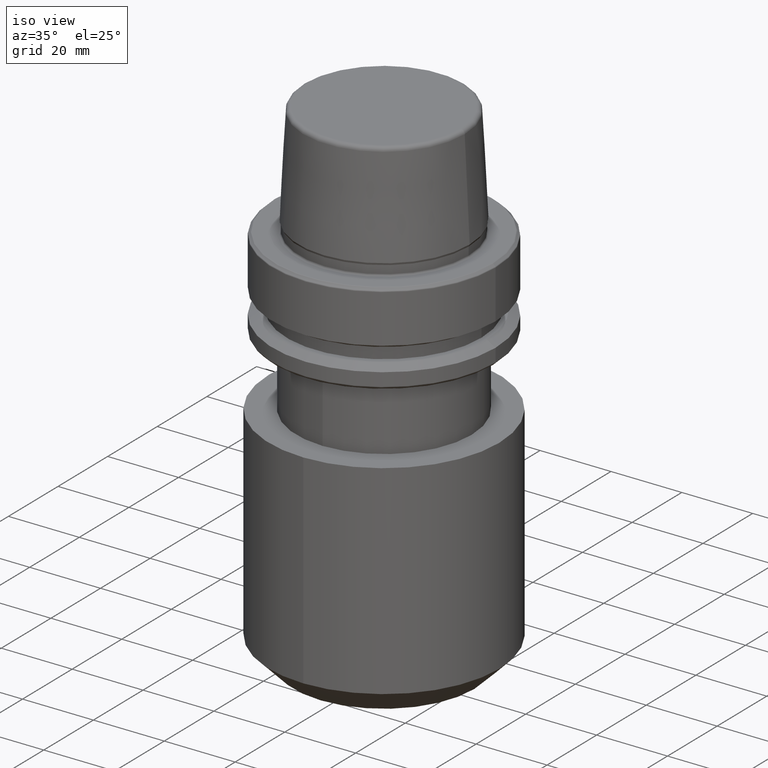
[diagram: clean part render]
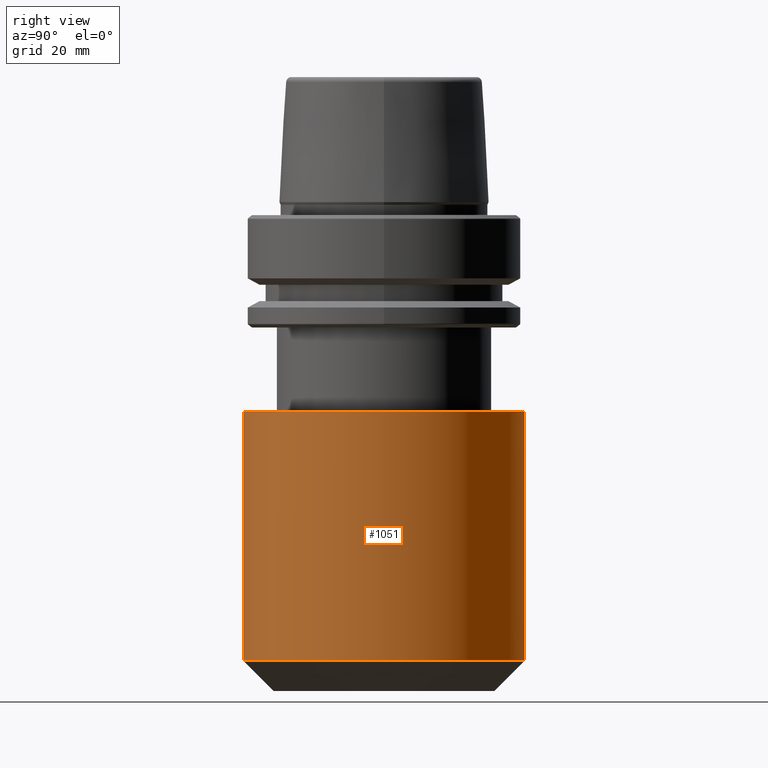
[diagram: tour spotlight — one face highlighted and labeled with its STEP entity id]
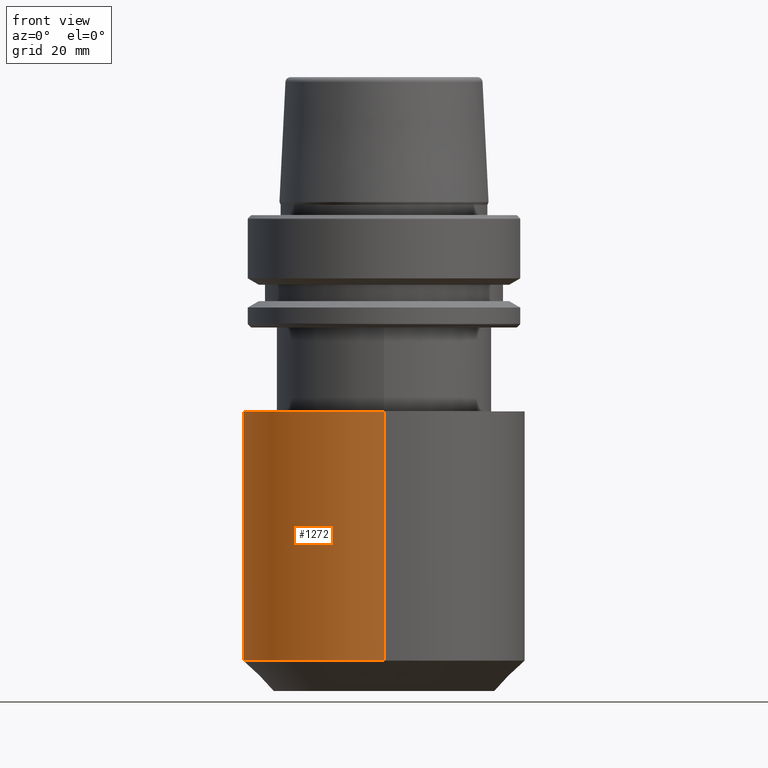
[diagram: tour spotlight — one face highlighted and labeled with its STEP entity id]
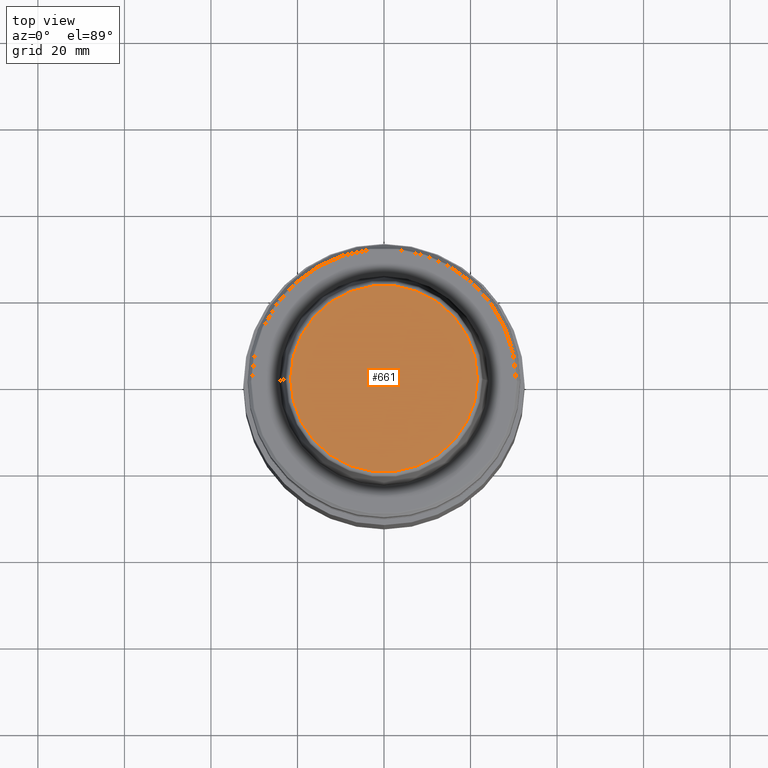
[diagram: tour spotlight — one face highlighted and labeled with its STEP entity id]
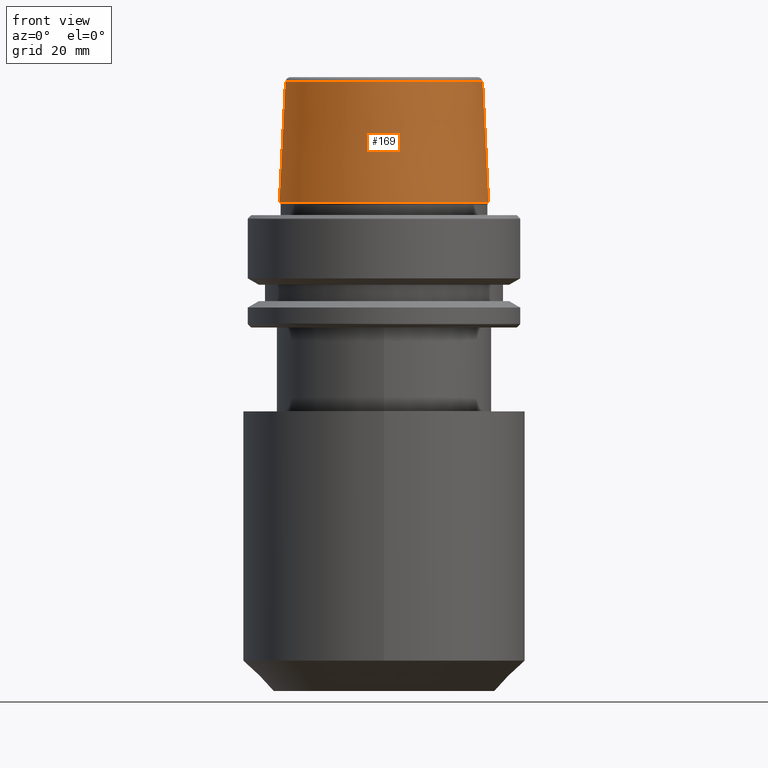
[diagram: tour spotlight — one face highlighted and labeled with its STEP entity id]
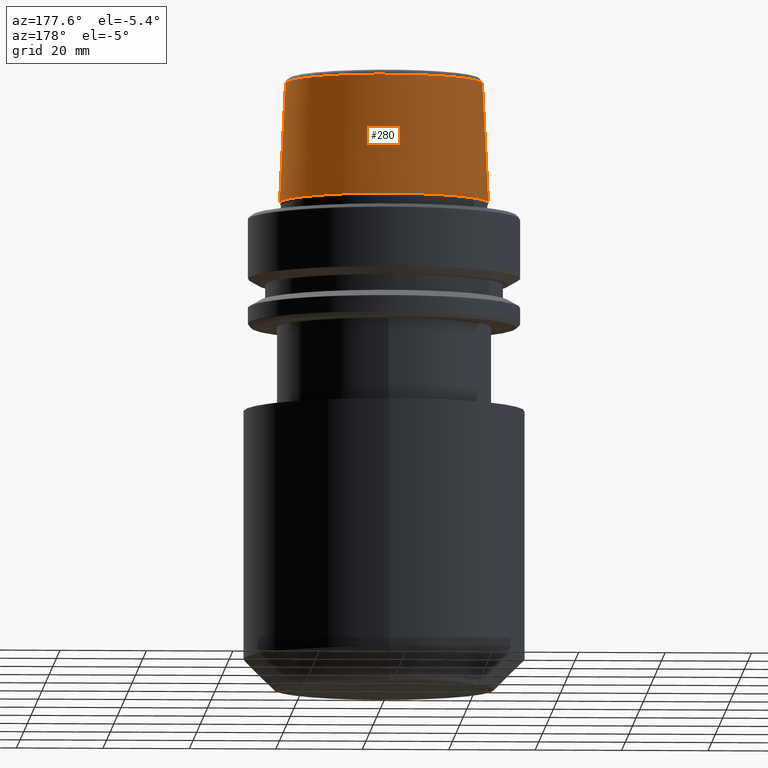
[diagram: tour spotlight — one face highlighted and labeled with its STEP entity id]
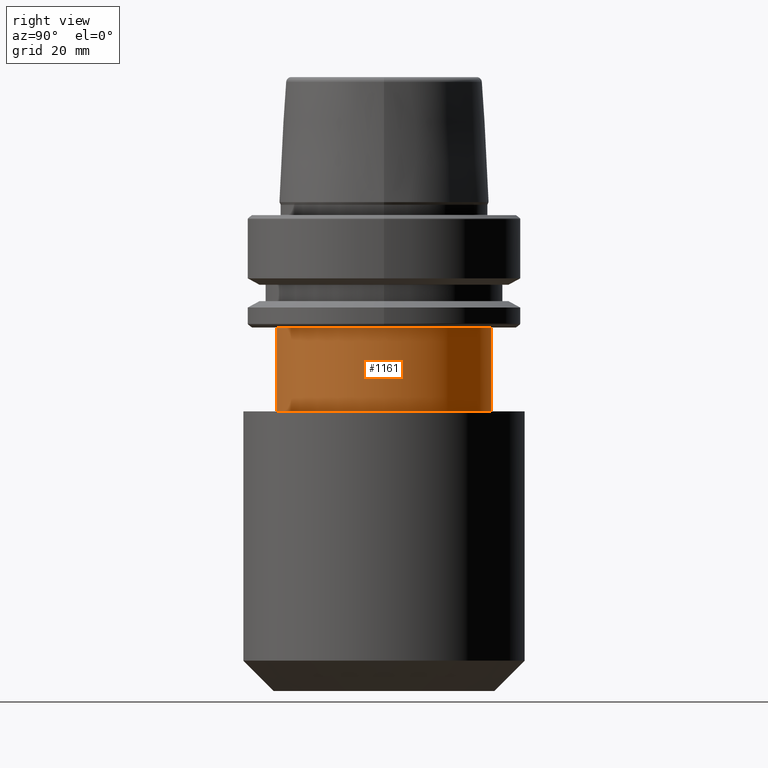
[diagram: tour spotlight — one face highlighted and labeled with its STEP entity id]
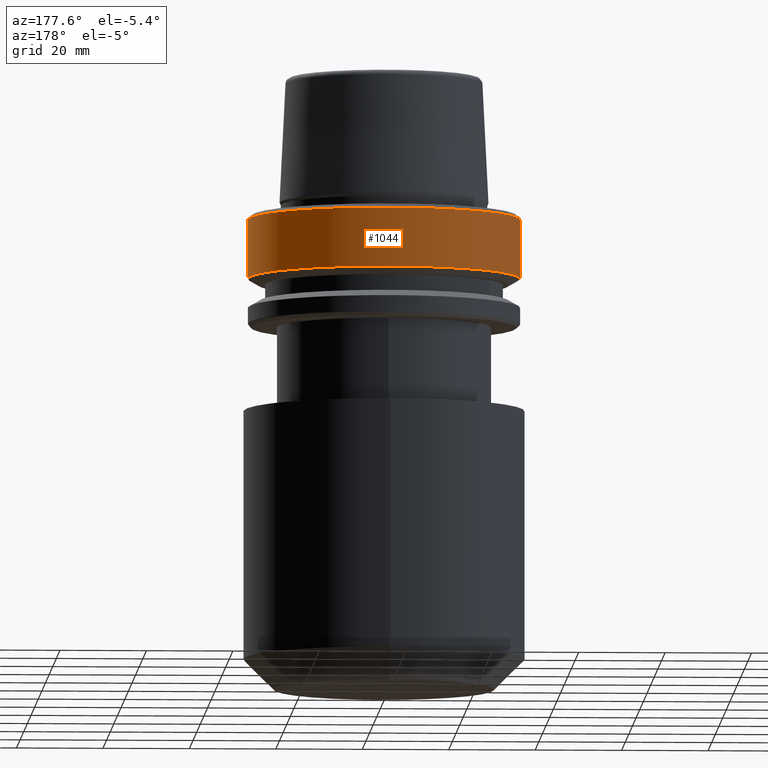
[diagram: tour spotlight — one face highlighted and labeled with its STEP entity id]
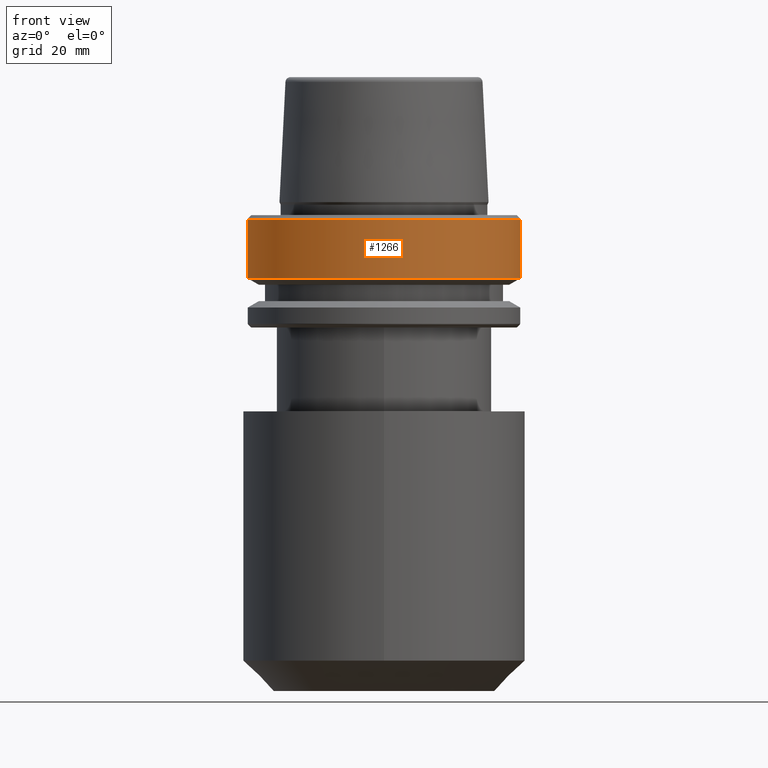
[diagram: tour spotlight — one face highlighted and labeled with its STEP entity id]
A machine part: a face-by-face anatomy tour. The part has 47 B-rep faces; the first image is the clean iso view, then the 8 largest visible faces are spotlighted one at a time (largest first), each with its STEP entity span.

Face 1 — right view, entity #1051. In plain terms, the highlighted cylindrical surface (partial cylindrical patch) has radius 32.5 mm, axis along (-0, 0, -1).
Definition (entity closure, byte-faithful):
#20 = EDGE_LOOP ( 'NONE', ( #1190, #1234, #52, #454 ) ) ;
#29 = VERTEX_POINT ( 'NONE', #803 ) ;
#52 = ORIENTED_EDGE ( 'NONE', *, *, #420, .F. ) ;
#100 = EDGE_CURVE ( 'NONE', #219, #930, #414, .T. ) ;
#165 = AXIS2_PLACEMENT_3D ( 'NONE', #877, #201, #688 ) ;
#178 = AXIS2_PLACEMENT_3D ( 'NONE', #1106, #1212, #423 ) ;
#201 = DIRECTION ( 'NONE',  ( -0.0000000000000000000, 4.965320723570064500E-017, -1.000000000000000000 ) ) ;
#212 = DIRECTION ( 'NONE',  ( -0.0000000000000000000, 4.965320723570064500E-017, -1.000000000000000000 ) ) ;
#219 = VERTEX_POINT ( 'NONE', #1207 ) ;
#258 = VERTEX_POINT ( 'NONE', #1060 ) ;
#311 = CIRCLE ( 'NONE', #700, 32.50000000000000700 ) ;
#312 = EDGE_CURVE ( 'NONE', #219, #29, #311, .T. ) ;
#318 = CARTESIAN_POINT ( 'NONE',  ( 3.980102097228899400E-015, -32.50000000000001400, -110.0000000000000000 ) ) ;
#414 = LINE ( 'NONE', #892, #1261 ) ;
#420 = EDGE_CURVE ( 'NONE', #930, #258, #1120, .T. ) ;
#423 = DIRECTION ( 'NONE',  ( 0.0000000000000000000, 1.000000000000000000, 0.0000000000000000000 ) ) ;
#454 = ORIENTED_EDGE ( 'NONE', *, *, #100, .F. ) ;
#511 = DIRECTION ( 'NONE',  ( -0.0000000000000000000, 4.965320723570064500E-017, -1.000000000000000000 ) ) ;
#688 = DIRECTION ( 'NONE',  ( 0.0000000000000000000, 1.000000000000000000, 0.0000000000000000000 ) ) ;
#700 = AXIS2_PLACEMENT_3D ( 'NONE', #1193, #511, #919 ) ;
#761 = FACE_OUTER_BOUND ( 'NONE', #20, .T. ) ;
#803 = CARTESIAN_POINT ( 'NONE',  ( 3.980102097228899400E-015, -32.50000000000001400, -45.38284271247462700 ) ) ;
#848 = DIRECTION ( 'NONE',  ( -0.0000000000000000000, 4.965320723570064500E-017, -1.000000000000000000 ) ) ;
#873 = CARTESIAN_POINT ( 'NONE',  ( 0.0000000000000000000, 32.50000000000000000, -102.9999999999999600 ) ) ;
#877 = CARTESIAN_POINT ( 'NONE',  ( 0.0000000000000000000, -6.470806446386675300E-015, -102.9999999999999600 ) ) ;
#892 = CARTESIAN_POINT ( 'NONE',  ( 0.0000000000000000000, 32.50000000000000000, -110.0000000000000000 ) ) ;
#919 = DIRECTION ( 'NONE',  ( 0.0000000000000000000, 1.000000000000000000, 0.0000000000000000000 ) ) ;
#930 = VERTEX_POINT ( 'NONE', #873 ) ;
#980 = EDGE_CURVE ( 'NONE', #29, #258, #984, .T. ) ;
#984 = LINE ( 'NONE', #318, #1101 ) ;
#1051 = ADVANCED_FACE ( 'NONE', ( #761 ), #1242, .T. ) ;
#1060 = CARTESIAN_POINT ( 'NONE',  ( 3.980102097228899400E-015, -32.50000000000001400, -102.9999999999999600 ) ) ;
#1101 = VECTOR ( 'NONE', #212, 1000.000000000000000 ) ;
#1106 = CARTESIAN_POINT ( 'NONE',  ( 0.0000000000000000000, -6.123233995736767700E-015, -110.0000000000000000 ) ) ;
#1120 = CIRCLE ( 'NONE', #165, 32.50000000000000700 ) ;
#1190 = ORIENTED_EDGE ( 'NONE', *, *, #312, .T. ) ;
#1193 = CARTESIAN_POINT ( 'NONE',  ( 0.0000000000000000000, -9.331683097516130700E-015, -45.38284271247462700 ) ) ;
#1207 = CARTESIAN_POINT ( 'NONE',  ( 0.0000000000000000000, 32.50000000000000000, -45.38284271247462700 ) ) ;
#1212 = DIRECTION ( 'NONE',  ( -0.0000000000000000000, 4.965320723570064500E-017, -1.000000000000000000 ) ) ;
#1234 = ORIENTED_EDGE ( 'NONE', *, *, #980, .T. ) ;
#1242 = CYLINDRICAL_SURFACE ( 'NONE', #178, 32.50000000000000700 ) ;
#1261 = VECTOR ( 'NONE', #848, 1000.000000000000000 ) ;

Face 2 — front view, entity #1272. In plain terms, the highlighted cylindrical surface (partial cylindrical patch) has radius 32.5 mm, axis along (-0, 0, -1).
Definition (entity closure, byte-faithful):
#15 = FACE_OUTER_BOUND ( 'NONE', #943, .T. ) ;
#29 = VERTEX_POINT ( 'NONE', #803 ) ;
#100 = EDGE_CURVE ( 'NONE', #219, #930, #414, .T. ) ;
#104 = ORIENTED_EDGE ( 'NONE', *, *, #996, .T. ) ;
#212 = DIRECTION ( 'NONE',  ( -0.0000000000000000000, 4.965320723570064500E-017, -1.000000000000000000 ) ) ;
#219 = VERTEX_POINT ( 'NONE', #1207 ) ;
#221 = CARTESIAN_POINT ( 'NONE',  ( 0.0000000000000000000, -9.331683097516130700E-015, -45.38284271247462700 ) ) ;
#258 = VERTEX_POINT ( 'NONE', #1060 ) ;
#318 = CARTESIAN_POINT ( 'NONE',  ( 3.980102097228899400E-015, -32.50000000000001400, -110.0000000000000000 ) ) ;
#322 = DIRECTION ( 'NONE',  ( 0.0000000000000000000, 1.000000000000000000, 0.0000000000000000000 ) ) ;
#414 = LINE ( 'NONE', #892, #1261 ) ;
#437 = ORIENTED_EDGE ( 'NONE', *, *, #980, .F. ) ;
#457 = CIRCLE ( 'NONE', #1191, 32.50000000000000700 ) ;
#484 = CYLINDRICAL_SURFACE ( 'NONE', #683, 32.50000000000000700 ) ;
#562 = DIRECTION ( 'NONE',  ( 0.0000000000000000000, 1.000000000000000000, 0.0000000000000000000 ) ) ;
#656 = CARTESIAN_POINT ( 'NONE',  ( 0.0000000000000000000, -6.123233995736767700E-015, -110.0000000000000000 ) ) ;
#670 = CARTESIAN_POINT ( 'NONE',  ( 0.0000000000000000000, -6.470806446386675300E-015, -102.9999999999999600 ) ) ;
#683 = AXIS2_PLACEMENT_3D ( 'NONE', #656, #762, #562 ) ;
#762 = DIRECTION ( 'NONE',  ( -0.0000000000000000000, 4.965320723570064500E-017, -1.000000000000000000 ) ) ;
#776 = DIRECTION ( 'NONE',  ( -0.0000000000000000000, 4.965320723570064500E-017, -1.000000000000000000 ) ) ;
#803 = CARTESIAN_POINT ( 'NONE',  ( 3.980102097228899400E-015, -32.50000000000001400, -45.38284271247462700 ) ) ;
#812 = ORIENTED_EDGE ( 'NONE', *, *, #820, .F. ) ;
#820 = EDGE_CURVE ( 'NONE', #258, #930, #926, .T. ) ;
#848 = DIRECTION ( 'NONE',  ( -0.0000000000000000000, 4.965320723570064500E-017, -1.000000000000000000 ) ) ;
#873 = CARTESIAN_POINT ( 'NONE',  ( 0.0000000000000000000, 32.50000000000000000, -102.9999999999999600 ) ) ;
#892 = CARTESIAN_POINT ( 'NONE',  ( 0.0000000000000000000, 32.50000000000000000, -110.0000000000000000 ) ) ;
#895 = DIRECTION ( 'NONE',  ( -0.0000000000000000000, 4.965320723570064500E-017, -1.000000000000000000 ) ) ;
#924 = AXIS2_PLACEMENT_3D ( 'NONE', #670, #776, #973 ) ;
#926 = CIRCLE ( 'NONE', #924, 32.50000000000000700 ) ;
#930 = VERTEX_POINT ( 'NONE', #873 ) ;
#943 = EDGE_LOOP ( 'NONE', ( #437, #104, #1109, #812 ) ) ;
#973 = DIRECTION ( 'NONE',  ( 0.0000000000000000000, 1.000000000000000000, 0.0000000000000000000 ) ) ;
#980 = EDGE_CURVE ( 'NONE', #29, #258, #984, .T. ) ;
#984 = LINE ( 'NONE', #318, #1101 ) ;
#996 = EDGE_CURVE ( 'NONE', #29, #219, #457, .T. ) ;
#1060 = CARTESIAN_POINT ( 'NONE',  ( 3.980102097228899400E-015, -32.50000000000001400, -102.9999999999999600 ) ) ;
#1101 = VECTOR ( 'NONE', #212, 1000.000000000000000 ) ;
#1109 = ORIENTED_EDGE ( 'NONE', *, *, #100, .T. ) ;
#1191 = AXIS2_PLACEMENT_3D ( 'NONE', #221, #895, #322 ) ;
#1207 = CARTESIAN_POINT ( 'NONE',  ( 0.0000000000000000000, 32.50000000000000000, -45.38284271247462700 ) ) ;
#1261 = VECTOR ( 'NONE', #848, 1000.000000000000000 ) ;
#1272 = ADVANCED_FACE ( 'NONE', ( #15 ), #484, .T. ) ;

Face 3 — top view, entity #661. In plain terms, the highlighted planar face has unit normal (0, 0, -1).
Definition (entity closure, byte-faithful):
#62 = CIRCLE ( 'NONE', #756, 21.58108272732117100 ) ;
#84 = CARTESIAN_POINT ( 'NONE',  ( -21.58108272732117100, 2.716307157494421400E-015, 31.89999999999999900 ) ) ;
#98 = PLANE ( 'NONE',  #733 ) ;
#175 = CARTESIAN_POINT ( 'NONE',  ( 0.0000000000000000000, 0.0000000000000000000, 31.89999999999999900 ) ) ;
#424 = DIRECTION ( 'NONE',  ( -0.0000000000000000000, -0.0000000000000000000, 1.000000000000000000 ) ) ;
#499 = DIRECTION ( 'NONE',  ( -0.0000000000000000000, -0.0000000000000000000, 1.000000000000000000 ) ) ;
#510 = EDGE_CURVE ( 'NONE', #751, #897, #62, .T. ) ;
#563 = AXIS2_PLACEMENT_3D ( 'NONE', #1079, #499, #1182 ) ;
#615 = EDGE_LOOP ( 'NONE', ( #1125, #1152 ) ) ;
#624 = CARTESIAN_POINT ( 'NONE',  ( 0.0000000000000000000, 0.0000000000000000000, 31.89999999999999900 ) ) ;
#661 = ADVANCED_FACE ( 'NONE', ( #1227 ), #98, .F. ) ;
#674 = DIRECTION ( 'NONE',  ( 0.0000000000000000000, 0.0000000000000000000, -1.000000000000000000 ) ) ;
#703 = CIRCLE ( 'NONE', #563, 21.58108272732117100 ) ;
#733 = AXIS2_PLACEMENT_3D ( 'NONE', #175, #674, #1260 ) ;
#751 = VERTEX_POINT ( 'NONE', #842 ) ;
#756 = AXIS2_PLACEMENT_3D ( 'NONE', #624, #424, #809 ) ;
#809 = DIRECTION ( 'NONE',  ( 1.000000000000000000, 0.0000000000000000000, 0.0000000000000000000 ) ) ;
#842 = CARTESIAN_POINT ( 'NONE',  ( 21.58108272732117100, 0.0000000000000000000, 31.89999999999999900 ) ) ;
#897 = VERTEX_POINT ( 'NONE', #84 ) ;
#916 = EDGE_CURVE ( 'NONE', #897, #751, #703, .T. ) ;
#1079 = CARTESIAN_POINT ( 'NONE',  ( 0.0000000000000000000, 0.0000000000000000000, 31.89999999999999900 ) ) ;
#1125 = ORIENTED_EDGE ( 'NONE', *, *, #510, .T. ) ;
#1152 = ORIENTED_EDGE ( 'NONE', *, *, #916, .T. ) ;
#1182 = DIRECTION ( 'NONE',  ( 1.000000000000000000, 0.0000000000000000000, 0.0000000000000000000 ) ) ;
#1227 = FACE_OUTER_BOUND ( 'NONE', #615, .T. ) ;
#1260 = DIRECTION ( 'NONE',  ( -1.000000000000000000, 0.0000000000000000000, -0.0000000000000000000 ) ) ;

Face 4 — front view, entity #169. In plain terms, the highlighted conical surface has half-angle 2.868 deg.
Definition (entity closure, byte-faithful):
#9 = ORIENTED_EDGE ( 'NONE', *, *, #251, .T. ) ;
#19 = CARTESIAN_POINT ( 'NONE',  ( 24.17032625081241900, 2.960011267740467600E-015, 3.000000000000002700 ) ) ;
#22 = CIRCLE ( 'NONE', #831, 24.17032625081241900 ) ;
#64 = AXIS2_PLACEMENT_3D ( 'NONE', #1217, #1144, #731 ) ;
#83 = DIRECTION ( 'NONE',  ( 1.000000000000000000, 0.0000000000000000000, 0.0000000000000000000 ) ) ;
#113 = DIRECTION ( 'NONE',  ( 0.05003611051310799500, 6.127656258166094300E-018, -0.9987474093306675200 ) ) ;
#124 = DIRECTION ( 'NONE',  ( -0.0000000000000000000, -0.0000000000000000000, 1.000000000000000000 ) ) ;
#169 = ADVANCED_FACE ( 'NONE', ( #427 ), #246, .T. ) ;
#240 = VERTEX_POINT ( 'NONE', #621 ) ;
#246 = CONICAL_SURFACE ( 'NONE', #64, 24.17032625081241900, 0.05005701257455992500 ) ;
#251 = EDGE_CURVE ( 'NONE', #337, #828, #1038, .T. ) ;
#265 = ORIENTED_EDGE ( 'NONE', *, *, #1047, .F. ) ;
#291 = CARTESIAN_POINT ( 'NONE',  ( -24.17032625081241900, 0.0000000000000000000, 3.000000000000002700 ) ) ;
#320 = CARTESIAN_POINT ( 'NONE',  ( -24.17032625081241900, 0.0000000000000000000, 3.000000000000002700 ) ) ;
#327 = ORIENTED_EDGE ( 'NONE', *, *, #1041, .F. ) ;
#329 = ORIENTED_EDGE ( 'NONE', *, *, #787, .T. ) ;
#337 = VERTEX_POINT ( 'NONE', #692 ) ;
#360 = CIRCLE ( 'NONE', #638, 22.77957961851797500 ) ;
#391 = DIRECTION ( 'NONE',  ( -0.0000000000000000000, -0.0000000000000000000, 1.000000000000000000 ) ) ;
#427 = FACE_OUTER_BOUND ( 'NONE', #614, .T. ) ;
#487 = CARTESIAN_POINT ( 'NONE',  ( 0.0000000000000000000, 0.0000000000000000000, 3.000000000000002700 ) ) ;
#614 = EDGE_LOOP ( 'NONE', ( #327, #265, #9, #329 ) ) ;
#621 = CARTESIAN_POINT ( 'NONE',  ( 22.77957961851797500, 0.0000000000000000000, 30.76004333261571900 ) ) ;
#638 = AXIS2_PLACEMENT_3D ( 'NONE', #714, #124, #811 ) ;
#692 = CARTESIAN_POINT ( 'NONE',  ( -22.77957961851797500, 2.789693926574032200E-015, 30.76004333261571900 ) ) ;
#714 = CARTESIAN_POINT ( 'NONE',  ( 0.0000000000000000000, 0.0000000000000000000, 30.76004333261571900 ) ) ;
#731 = DIRECTION ( 'NONE',  ( -1.000000000000000000, 0.0000000000000000000, 0.0000000000000000000 ) ) ;
#732 = VECTOR ( 'NONE', #113, 1000.000000000000200 ) ;
#763 = VECTOR ( 'NONE', #893, 1000.000000000000200 ) ;
#774 = CARTESIAN_POINT ( 'NONE',  ( 24.17032625081241900, 2.960011267740467600E-015, 3.000000000000002700 ) ) ;
#787 = EDGE_CURVE ( 'NONE', #828, #846, #22, .T. ) ;
#811 = DIRECTION ( 'NONE',  ( 1.000000000000000000, 0.0000000000000000000, 0.0000000000000000000 ) ) ;
#828 = VERTEX_POINT ( 'NONE', #291 ) ;
#831 = AXIS2_PLACEMENT_3D ( 'NONE', #487, #391, #83 ) ;
#846 = VERTEX_POINT ( 'NONE', #774 ) ;
#893 = DIRECTION ( 'NONE',  ( -0.05003611051310799500, 0.0000000000000000000, -0.9987474093306675200 ) ) ;
#936 = LINE ( 'NONE', #19, #732 ) ;
#1038 = LINE ( 'NONE', #320, #763 ) ;
#1041 = EDGE_CURVE ( 'NONE', #240, #846, #936, .T. ) ;
#1047 = EDGE_CURVE ( 'NONE', #337, #240, #360, .T. ) ;
#1144 = DIRECTION ( 'NONE',  ( 0.0000000000000000000, 0.0000000000000000000, -1.000000000000000000 ) ) ;
#1217 = CARTESIAN_POINT ( 'NONE',  ( 0.0000000000000000000, 0.0000000000000000000, 3.000000000000002700 ) ) ;

Face 5 — auxiliary view, entity #280. In plain terms, the highlighted conical surface has half-angle 2.868 deg.
Definition (entity closure, byte-faithful):
#19 = CARTESIAN_POINT ( 'NONE',  ( 24.17032625081241900, 2.960011267740467600E-015, 3.000000000000002700 ) ) ;
#39 = CARTESIAN_POINT ( 'NONE',  ( 0.0000000000000000000, 0.0000000000000000000, 3.000000000000002700 ) ) ;
#73 = EDGE_CURVE ( 'NONE', #846, #828, #383, .T. ) ;
#75 = DIRECTION ( 'NONE',  ( 0.0000000000000000000, 0.0000000000000000000, -1.000000000000000000 ) ) ;
#81 = AXIS2_PLACEMENT_3D ( 'NONE', #918, #346, #1018 ) ;
#113 = DIRECTION ( 'NONE',  ( 0.05003611051310799500, 6.127656258166094300E-018, -0.9987474093306675200 ) ) ;
#135 = DIRECTION ( 'NONE',  ( -1.000000000000000000, 0.0000000000000000000, 0.0000000000000000000 ) ) ;
#137 = ORIENTED_EDGE ( 'NONE', *, *, #251, .F. ) ;
#240 = VERTEX_POINT ( 'NONE', #621 ) ;
#251 = EDGE_CURVE ( 'NONE', #337, #828, #1038, .T. ) ;
#280 = ADVANCED_FACE ( 'NONE', ( #405 ), #1230, .T. ) ;
#287 = AXIS2_PLACEMENT_3D ( 'NONE', #665, #75, #135 ) ;
#291 = CARTESIAN_POINT ( 'NONE',  ( -24.17032625081241900, 0.0000000000000000000, 3.000000000000002700 ) ) ;
#320 = CARTESIAN_POINT ( 'NONE',  ( -24.17032625081241900, 0.0000000000000000000, 3.000000000000002700 ) ) ;
#337 = VERTEX_POINT ( 'NONE', #692 ) ;
#346 = DIRECTION ( 'NONE',  ( -0.0000000000000000000, -0.0000000000000000000, 1.000000000000000000 ) ) ;
#383 = CIRCLE ( 'NONE', #681, 24.17032625081241900 ) ;
#405 = FACE_OUTER_BOUND ( 'NONE', #749, .T. ) ;
#421 = ORIENTED_EDGE ( 'NONE', *, *, #73, .T. ) ;
#430 = CIRCLE ( 'NONE', #81, 22.77957961851797500 ) ;
#529 = DIRECTION ( 'NONE',  ( -0.0000000000000000000, -0.0000000000000000000, 1.000000000000000000 ) ) ;
#621 = CARTESIAN_POINT ( 'NONE',  ( 22.77957961851797500, 0.0000000000000000000, 30.76004333261571900 ) ) ;
#665 = CARTESIAN_POINT ( 'NONE',  ( 0.0000000000000000000, 0.0000000000000000000, 3.000000000000002700 ) ) ;
#681 = AXIS2_PLACEMENT_3D ( 'NONE', #39, #529, #836 ) ;
#692 = CARTESIAN_POINT ( 'NONE',  ( -22.77957961851797500, 2.789693926574032200E-015, 30.76004333261571900 ) ) ;
#732 = VECTOR ( 'NONE', #113, 1000.000000000000200 ) ;
#749 = EDGE_LOOP ( 'NONE', ( #882, #1023, #421, #137 ) ) ;
#763 = VECTOR ( 'NONE', #893, 1000.000000000000200 ) ;
#774 = CARTESIAN_POINT ( 'NONE',  ( 24.17032625081241900, 2.960011267740467600E-015, 3.000000000000002700 ) ) ;
#828 = VERTEX_POINT ( 'NONE', #291 ) ;
#836 = DIRECTION ( 'NONE',  ( 1.000000000000000000, 0.0000000000000000000, 0.0000000000000000000 ) ) ;
#846 = VERTEX_POINT ( 'NONE', #774 ) ;
#882 = ORIENTED_EDGE ( 'NONE', *, *, #1153, .F. ) ;
#893 = DIRECTION ( 'NONE',  ( -0.05003611051310799500, 0.0000000000000000000, -0.9987474093306675200 ) ) ;
#918 = CARTESIAN_POINT ( 'NONE',  ( 0.0000000000000000000, 0.0000000000000000000, 30.76004333261571900 ) ) ;
#936 = LINE ( 'NONE', #19, #732 ) ;
#1018 = DIRECTION ( 'NONE',  ( 1.000000000000000000, 0.0000000000000000000, 0.0000000000000000000 ) ) ;
#1023 = ORIENTED_EDGE ( 'NONE', *, *, #1041, .T. ) ;
#1038 = LINE ( 'NONE', #320, #763 ) ;
#1041 = EDGE_CURVE ( 'NONE', #240, #846, #936, .T. ) ;
#1153 = EDGE_CURVE ( 'NONE', #240, #337, #430, .T. ) ;
#1230 = CONICAL_SURFACE ( 'NONE', #287, 24.17032625081241900, 0.05005701257455992500 ) ;

Face 6 — right view, entity #1161. In plain terms, the highlighted cylindrical surface (partial cylindrical patch) has radius 24.75 mm, axis along (-0, 0, -1).
Definition (entity closure, byte-faithful):
#5 = AXIS2_PLACEMENT_3D ( 'NONE', #557, #347, #908 ) ;
#68 = VERTEX_POINT ( 'NONE', #450 ) ;
#133 = DIRECTION ( 'NONE',  ( -0.0000000000000000000, 4.965320723570064500E-017, -1.000000000000000000 ) ) ;
#145 = CIRCLE ( 'NONE', #5, 24.75000000000001100 ) ;
#155 = AXIS2_PLACEMENT_3D ( 'NONE', #1126, #1223, #441 ) ;
#163 = EDGE_CURVE ( 'NONE', #687, #1171, #145, .T. ) ;
#170 = CARTESIAN_POINT ( 'NONE',  ( 3.031000827889700400E-015, -24.75000000000001800, -110.0000000000000000 ) ) ;
#206 = DIRECTION ( 'NONE',  ( 0.0000000000000000000, 1.000000000000000000, 0.0000000000000000000 ) ) ;
#307 = FACE_OUTER_BOUND ( 'NONE', #1027, .T. ) ;
#347 = DIRECTION ( 'NONE',  ( -0.0000000000000000000, -0.0000000000000000000, 1.000000000000000000 ) ) ;
#348 = VERTEX_POINT ( 'NONE', #479 ) ;
#406 = ORIENTED_EDGE ( 'NONE', *, *, #669, .T. ) ;
#441 = DIRECTION ( 'NONE',  ( 0.0000000000000000000, 1.000000000000000000, 0.0000000000000000000 ) ) ;
#450 = CARTESIAN_POINT ( 'NONE',  ( 0.0000000000000000000, 24.75000000000000000, -45.38284271247462700 ) ) ;
#471 = CYLINDRICAL_SURFACE ( 'NONE', #155, 24.75000000000001100 ) ;
#479 = CARTESIAN_POINT ( 'NONE',  ( 3.031000827889700400E-015, -24.75000000000002100, -45.38284271247462700 ) ) ;
#557 = CARTESIAN_POINT ( 'NONE',  ( 0.0000000000000000000, -1.029410340353562200E-014, -26.00000000000001100 ) ) ;
#579 = VECTOR ( 'NONE', #823, 1000.000000000000000 ) ;
#607 = EDGE_CURVE ( 'NONE', #68, #348, #1244, .T. ) ;
#617 = CARTESIAN_POINT ( 'NONE',  ( 3.031000827889700400E-015, -24.75000000000002100, -26.00000000000001100 ) ) ;
#646 = CARTESIAN_POINT ( 'NONE',  ( 0.0000000000000000000, -9.331683097516130700E-015, -45.38284271247462700 ) ) ;
#669 = EDGE_CURVE ( 'NONE', #687, #348, #1183, .T. ) ;
#673 = ORIENTED_EDGE ( 'NONE', *, *, #1121, .F. ) ;
#687 = VERTEX_POINT ( 'NONE', #617 ) ;
#728 = DIRECTION ( 'NONE',  ( -0.0000000000000000000, 4.965320723570064500E-017, -1.000000000000000000 ) ) ;
#823 = DIRECTION ( 'NONE',  ( -0.0000000000000000000, 4.965320723570064500E-017, -1.000000000000000000 ) ) ;
#876 = VECTOR ( 'NONE', #133, 1000.000000000000000 ) ;
#900 = AXIS2_PLACEMENT_3D ( 'NONE', #646, #728, #206 ) ;
#908 = DIRECTION ( 'NONE',  ( 1.000000000000000000, 0.0000000000000000000, 0.0000000000000000000 ) ) ;
#1001 = LINE ( 'NONE', #1114, #876 ) ;
#1007 = ORIENTED_EDGE ( 'NONE', *, *, #607, .F. ) ;
#1027 = EDGE_LOOP ( 'NONE', ( #1090, #406, #1007, #673 ) ) ;
#1090 = ORIENTED_EDGE ( 'NONE', *, *, #163, .F. ) ;
#1114 = CARTESIAN_POINT ( 'NONE',  ( 0.0000000000000000000, 24.75000000000000400, -110.0000000000000000 ) ) ;
#1121 = EDGE_CURVE ( 'NONE', #1171, #68, #1001, .T. ) ;
#1126 = CARTESIAN_POINT ( 'NONE',  ( 0.0000000000000000000, -6.123233995736767700E-015, -110.0000000000000000 ) ) ;
#1161 = ADVANCED_FACE ( 'NONE', ( #307 ), #471, .T. ) ;
#1171 = VERTEX_POINT ( 'NONE', #1245 ) ;
#1183 = LINE ( 'NONE', #170, #579 ) ;
#1223 = DIRECTION ( 'NONE',  ( -0.0000000000000000000, 4.965320723570064500E-017, -1.000000000000000000 ) ) ;
#1244 = CIRCLE ( 'NONE', #900, 24.75000000000001100 ) ;
#1245 = CARTESIAN_POINT ( 'NONE',  ( 0.0000000000000000000, 24.75000000000000000, -26.00000000000001100 ) ) ;

Face 7 — auxiliary view, entity #1044. In plain terms, the highlighted cylindrical surface (partial cylindrical patch) has radius 31.5 mm, axis along (-0, -0, 1).
Definition (entity closure, byte-faithful):
#17 = AXIS2_PLACEMENT_3D ( 'NONE', #604, #443, #95 ) ;
#43 = EDGE_LOOP ( 'NONE', ( #277, #543, #891, #632 ) ) ;
#94 = AXIS2_PLACEMENT_3D ( 'NONE', #111, #705, #234 ) ;
#95 = DIRECTION ( 'NONE',  ( 1.000000000000000000, 0.0000000000000000000, 0.0000000000000000000 ) ) ;
#96 = CARTESIAN_POINT ( 'NONE',  ( 31.50000000000000000, 0.0000000000000000000, 78.96908074195309300 ) ) ;
#111 = CARTESIAN_POINT ( 'NONE',  ( 0.0000000000000000000, 0.0000000000000000000, -14.62250092524070100 ) ) ;
#119 = VERTEX_POINT ( 'NONE', #519 ) ;
#164 = LINE ( 'NONE', #540, #345 ) ;
#234 = DIRECTION ( 'NONE',  ( 1.000000000000000000, 0.0000000000000000000, 0.0000000000000000000 ) ) ;
#245 = DIRECTION ( 'NONE',  ( -0.0000000000000000000, -0.0000000000000000000, 1.000000000000000000 ) ) ;
#248 = EDGE_CURVE ( 'NONE', #509, #1169, #941, .T. ) ;
#277 = ORIENTED_EDGE ( 'NONE', *, *, #248, .T. ) ;
#325 = CARTESIAN_POINT ( 'NONE',  ( 0.0000000000000000000, 0.0000000000000000000, 78.96908074195309300 ) ) ;
#345 = VECTOR ( 'NONE', #245, 1000.000000000000000 ) ;
#354 = EDGE_CURVE ( 'NONE', #119, #1071, #825, .T. ) ;
#443 = DIRECTION ( 'NONE',  ( -0.0000000000000000000, -0.0000000000000000000, 1.000000000000000000 ) ) ;
#509 = VERTEX_POINT ( 'NONE', #1172 ) ;
#512 = DIRECTION ( 'NONE',  ( -0.0000000000000000000, -0.0000000000000000000, 1.000000000000000000 ) ) ;
#519 = CARTESIAN_POINT ( 'NONE',  ( 31.50000000000000000, 0.0000000000000000000, -0.9656854249492363700 ) ) ;
#540 = CARTESIAN_POINT ( 'NONE',  ( -31.50000000000000000, 3.857637417314162700E-015, 78.96908074195309300 ) ) ;
#543 = ORIENTED_EDGE ( 'NONE', *, *, #565, .T. ) ;
#565 = EDGE_CURVE ( 'NONE', #1169, #1071, #164, .T. ) ;
#604 = CARTESIAN_POINT ( 'NONE',  ( 0.0000000000000000000, 0.0000000000000000000, -0.9656854249492363700 ) ) ;
#632 = ORIENTED_EDGE ( 'NONE', *, *, #976, .F. ) ;
#654 = AXIS2_PLACEMENT_3D ( 'NONE', #325, #802, #998 ) ;
#660 = CYLINDRICAL_SURFACE ( 'NONE', #654, 31.50000000000000000 ) ;
#701 = FACE_OUTER_BOUND ( 'NONE', #43, .T. ) ;
#705 = DIRECTION ( 'NONE',  ( -0.0000000000000000000, -0.0000000000000000000, 1.000000000000000000 ) ) ;
#802 = DIRECTION ( 'NONE',  ( -0.0000000000000000000, -0.0000000000000000000, 1.000000000000000000 ) ) ;
#815 = CARTESIAN_POINT ( 'NONE',  ( -31.50000000000000000, 3.857637417314162700E-015, -0.9656854249492363700 ) ) ;
#825 = CIRCLE ( 'NONE', #17, 31.50000000000000000 ) ;
#891 = ORIENTED_EDGE ( 'NONE', *, *, #354, .F. ) ;
#941 = CIRCLE ( 'NONE', #94, 31.50000000000000000 ) ;
#976 = EDGE_CURVE ( 'NONE', #509, #119, #1132, .T. ) ;
#998 = DIRECTION ( 'NONE',  ( 1.000000000000000000, 0.0000000000000000000, 0.0000000000000000000 ) ) ;
#1044 = ADVANCED_FACE ( 'NONE', ( #701 ), #660, .T. ) ;
#1071 = VERTEX_POINT ( 'NONE', #815 ) ;
#1132 = LINE ( 'NONE', #96, #1162 ) ;
#1141 = CARTESIAN_POINT ( 'NONE',  ( -31.50000000000000000, 3.857637417314162700E-015, -14.62250092524070100 ) ) ;
#1162 = VECTOR ( 'NONE', #512, 1000.000000000000000 ) ;
#1169 = VERTEX_POINT ( 'NONE', #1141 ) ;
#1172 = CARTESIAN_POINT ( 'NONE',  ( 31.50000000000000000, 0.0000000000000000000, -14.62250092524070100 ) ) ;

Face 8 — front view, entity #1266. In plain terms, the highlighted cylindrical surface (partial cylindrical patch) has radius 31.5 mm, axis along (-0, -0, 1).
Definition (entity closure, byte-faithful):
#96 = CARTESIAN_POINT ( 'NONE',  ( 31.50000000000000000, 0.0000000000000000000, 78.96908074195309300 ) ) ;
#116 = CIRCLE ( 'NONE', #603, 31.50000000000000000 ) ;
#119 = VERTEX_POINT ( 'NONE', #519 ) ;
#164 = LINE ( 'NONE', #540, #345 ) ;
#171 = DIRECTION ( 'NONE',  ( 1.000000000000000000, 0.0000000000000000000, 0.0000000000000000000 ) ) ;
#191 = DIRECTION ( 'NONE',  ( 1.000000000000000000, 0.0000000000000000000, 0.0000000000000000000 ) ) ;
#245 = DIRECTION ( 'NONE',  ( -0.0000000000000000000, -0.0000000000000000000, 1.000000000000000000 ) ) ;
#256 = ORIENTED_EDGE ( 'NONE', *, *, #976, .T. ) ;
#261 = ORIENTED_EDGE ( 'NONE', *, *, #565, .F. ) ;
#266 = FACE_OUTER_BOUND ( 'NONE', #449, .T. ) ;
#271 = DIRECTION ( 'NONE',  ( -0.0000000000000000000, -0.0000000000000000000, 1.000000000000000000 ) ) ;
#345 = VECTOR ( 'NONE', #245, 1000.000000000000000 ) ;
#372 = CARTESIAN_POINT ( 'NONE',  ( 0.0000000000000000000, 0.0000000000000000000, -14.62250092524070100 ) ) ;
#402 = CIRCLE ( 'NONE', #1264, 31.50000000000000000 ) ;
#449 = EDGE_LOOP ( 'NONE', ( #261, #1056, #256, #541 ) ) ;
#465 = CYLINDRICAL_SURFACE ( 'NONE', #707, 31.50000000000000000 ) ;
#466 = DIRECTION ( 'NONE',  ( 1.000000000000000000, 0.0000000000000000000, 0.0000000000000000000 ) ) ;
#509 = VERTEX_POINT ( 'NONE', #1172 ) ;
#512 = DIRECTION ( 'NONE',  ( -0.0000000000000000000, -0.0000000000000000000, 1.000000000000000000 ) ) ;
#519 = CARTESIAN_POINT ( 'NONE',  ( 31.50000000000000000, 0.0000000000000000000, -0.9656854249492363700 ) ) ;
#540 = CARTESIAN_POINT ( 'NONE',  ( -31.50000000000000000, 3.857637417314162700E-015, 78.96908074195309300 ) ) ;
#541 = ORIENTED_EDGE ( 'NONE', *, *, #805, .F. ) ;
#565 = EDGE_CURVE ( 'NONE', #1169, #1071, #164, .T. ) ;
#588 = DIRECTION ( 'NONE',  ( -0.0000000000000000000, -0.0000000000000000000, 1.000000000000000000 ) ) ;
#603 = AXIS2_PLACEMENT_3D ( 'NONE', #1178, #588, #191 ) ;
#707 = AXIS2_PLACEMENT_3D ( 'NONE', #1255, #271, #171 ) ;
#805 = EDGE_CURVE ( 'NONE', #1071, #119, #116, .T. ) ;
#815 = CARTESIAN_POINT ( 'NONE',  ( -31.50000000000000000, 3.857637417314162700E-015, -0.9656854249492363700 ) ) ;
#976 = EDGE_CURVE ( 'NONE', #509, #119, #1132, .T. ) ;
#1045 = DIRECTION ( 'NONE',  ( -0.0000000000000000000, -0.0000000000000000000, 1.000000000000000000 ) ) ;
#1056 = ORIENTED_EDGE ( 'NONE', *, *, #1247, .T. ) ;
#1071 = VERTEX_POINT ( 'NONE', #815 ) ;
#1132 = LINE ( 'NONE', #96, #1162 ) ;
#1141 = CARTESIAN_POINT ( 'NONE',  ( -31.50000000000000000, 3.857637417314162700E-015, -14.62250092524070100 ) ) ;
#1162 = VECTOR ( 'NONE', #512, 1000.000000000000000 ) ;
#1169 = VERTEX_POINT ( 'NONE', #1141 ) ;
#1172 = CARTESIAN_POINT ( 'NONE',  ( 31.50000000000000000, 0.0000000000000000000, -14.62250092524070100 ) ) ;
#1178 = CARTESIAN_POINT ( 'NONE',  ( 0.0000000000000000000, 0.0000000000000000000, -0.9656854249492363700 ) ) ;
#1247 = EDGE_CURVE ( 'NONE', #1169, #509, #402, .T. ) ;
#1255 = CARTESIAN_POINT ( 'NONE',  ( 0.0000000000000000000, 0.0000000000000000000, 78.96908074195309300 ) ) ;
#1264 = AXIS2_PLACEMENT_3D ( 'NONE', #372, #1045, #466 ) ;
#1266 = ADVANCED_FACE ( 'NONE', ( #266 ), #465, .T. ) ;